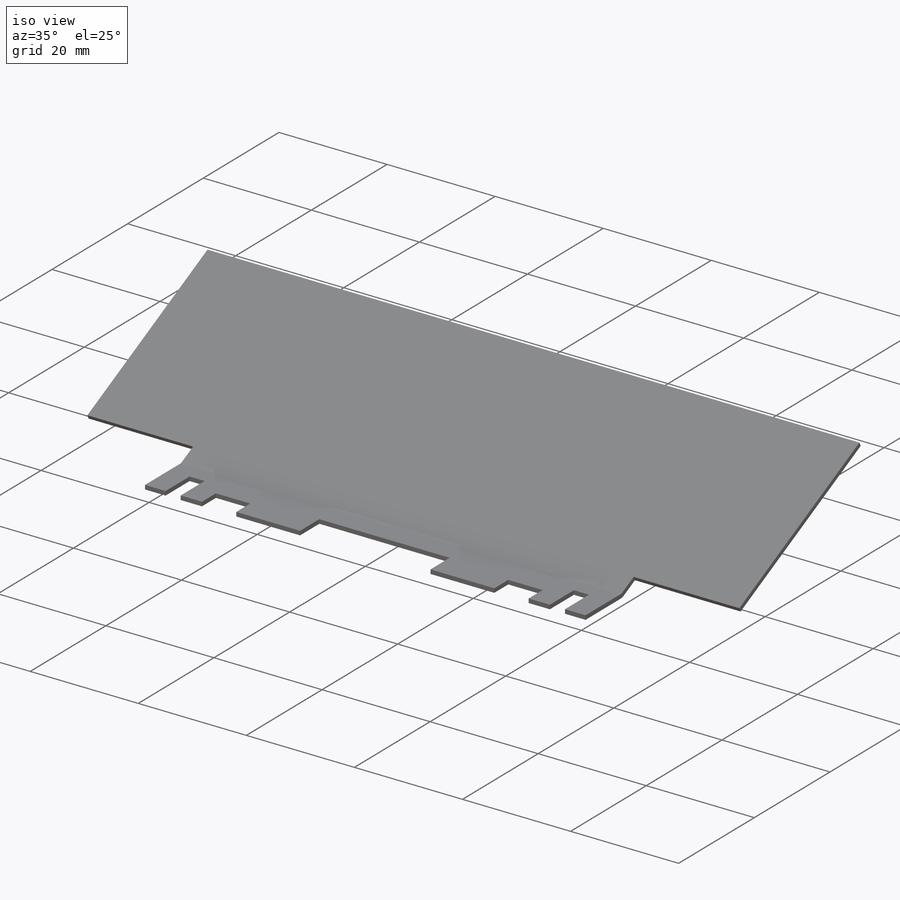
[diagram: iso view]
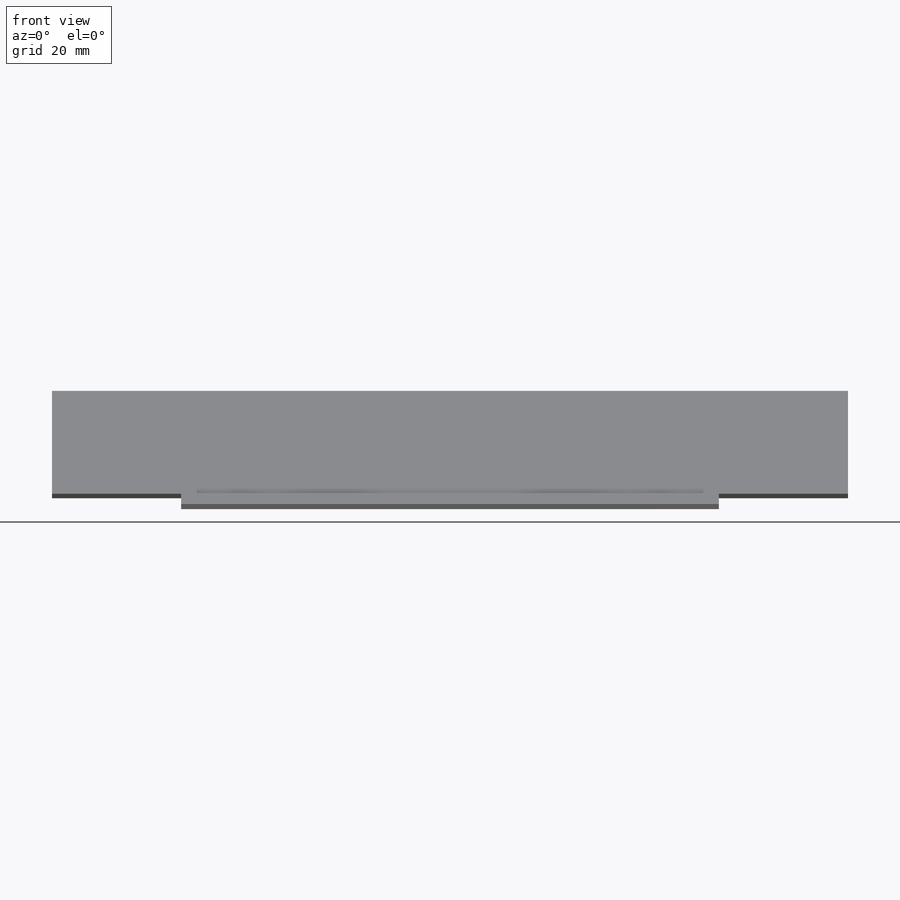
[diagram: front view]
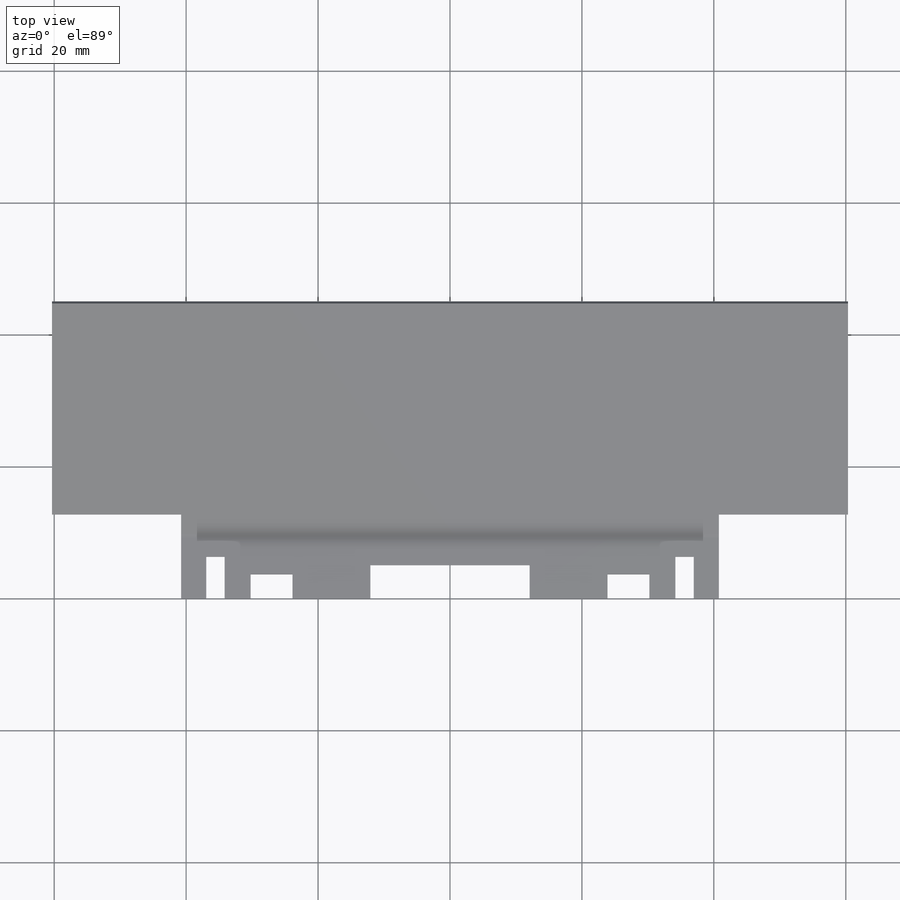
[diagram: top view]
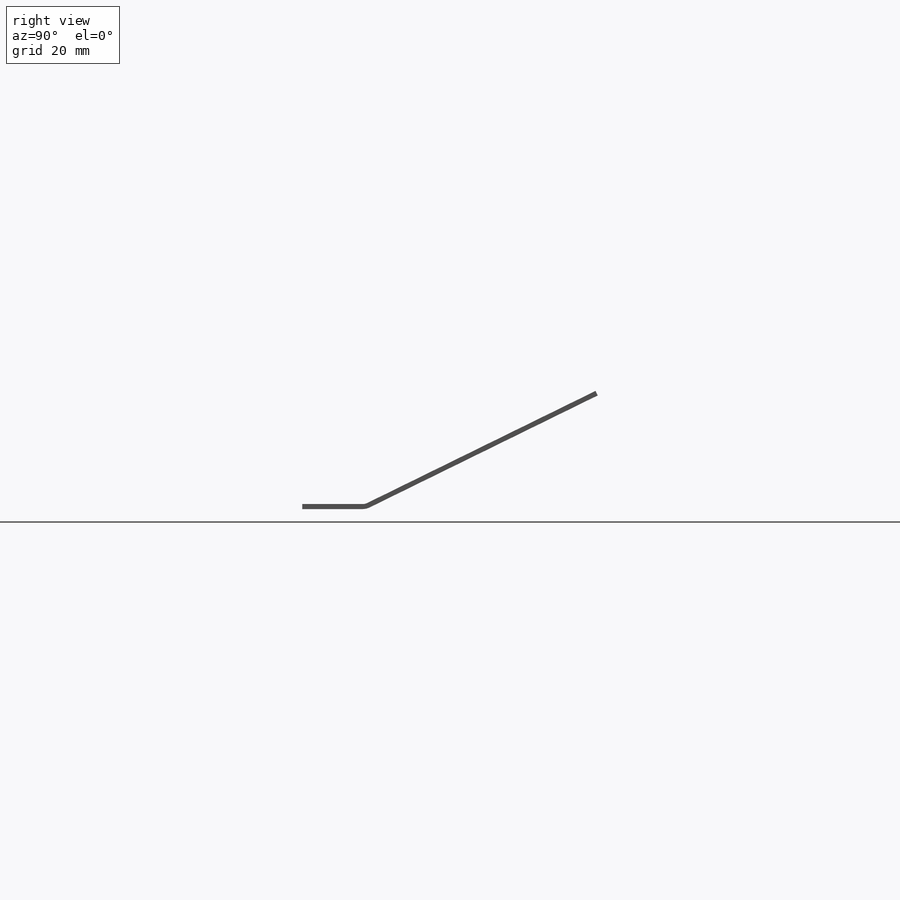
[diagram: right view]
SOLIDWORKS PART (.sldprt)
format: sldprt  version: not decoded by parser v0  size: 288,768 bytes
history: native  units: mm
features: sketch x7, cut_extrude x5, sheet_metal_op x2, material x1 + 1 further entry (+15 scaffold rows collapsed; 1 parser-record rows omitted)
feature tree (32):
  scaffold x15  (default folders/planes/origin — collapsed)
  material  "Material <not specified>"
  sketch  "Sketch1"  dims[c1.D1=~39.167343mm c2.D1=12.7mm c2.D2=19.05mm c2.D3=34.925mm c2.D4=9.525mm c3.D1=34.925mm c3.D2=53.975mm c3.D3=17.145mm]
  sheet_metal_op  "Sheet-Metal1"  Thickness=0.762mm
  sheet_metal_op  "Base-Flange1"
  sketch  "Sketch3"  dims[D1=19.558mm D2=9.017mm]
  cut_extrude  "Extrude1"  [1 undecoded]
  sketch  "Sketch4"  dims[D1=24.13mm D2=5.08mm]
  cut_extrude  "Extrude2"  [1 undecoded]
  sketch  "Sketch11"  dims[D1=6.35mm D2=2.794mm D3=35.56mm]
  cut_extrude  "Extrude9"  [1 undecoded]
  sketch  "Sketch10"  dims[D1=6.35mm D2=3.683mm]
  cut_extrude  "Extrude3"  [1 undecoded]
  sketch  "Sketch12"  dims[D1=0.508mm]
  cut_extrude  "Extrude10"  [1 undecoded]
  "Flat-Pattern1"
  sketch  "Bend-Lines1"
  parser-record x1  (decoder bookkeeping rows leaked as tree rows — omitted from the tree; the rows remain in map.json)
decode coverage: 7 of 14 modeling features carry decoded parameters; 1 rows unclassified (native names shown)
note: ~ marks probable driven/reference dimensions
note: 5 parameter values undecoded
summary: no parameter record found for 5 features
note: suppression state not decoded; provenance and decode notes live in map.json
